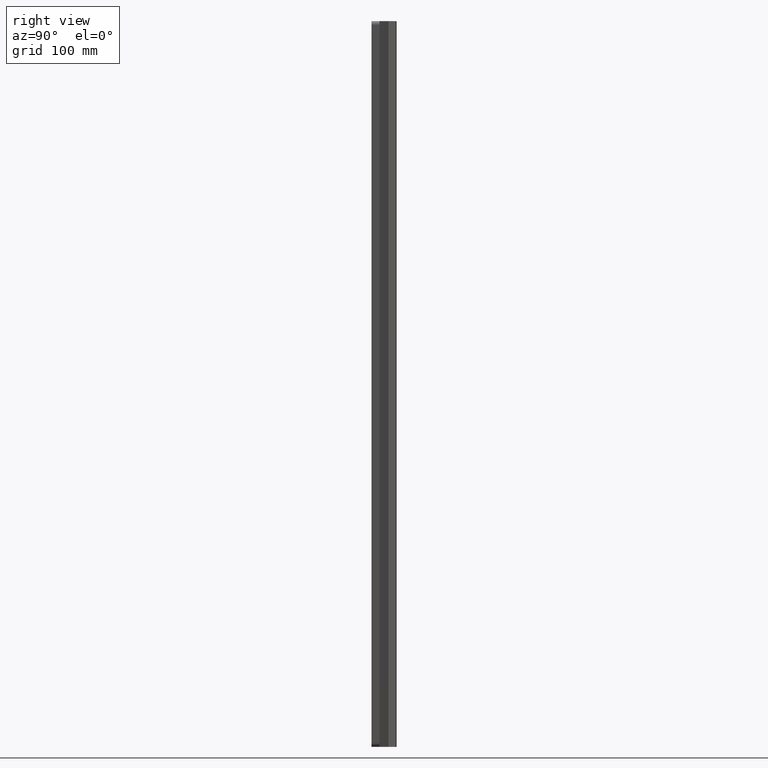
[diagram: clean part render]
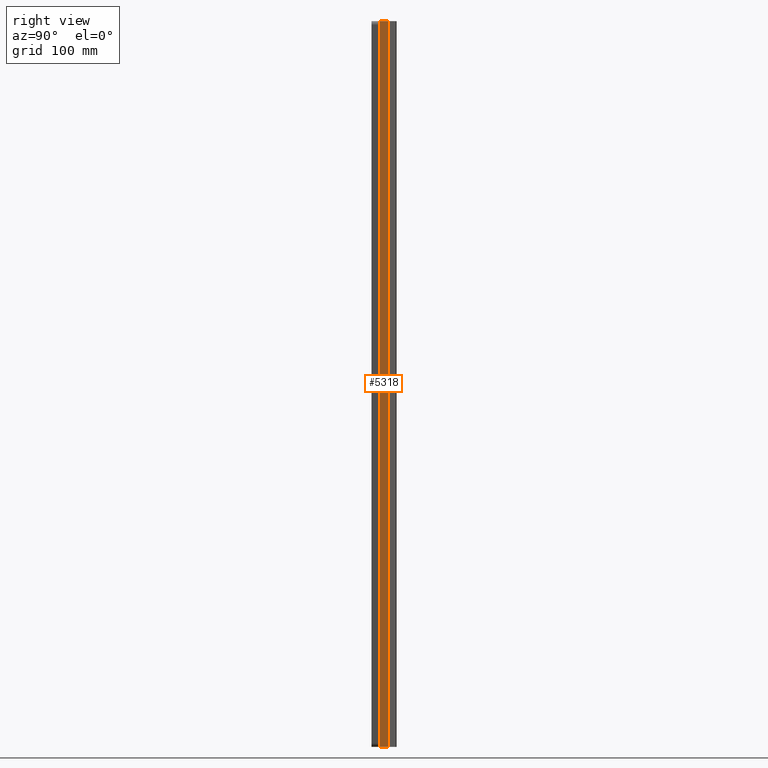
[diagram: same view with one face highlighted and labeled with its STEP entity id]
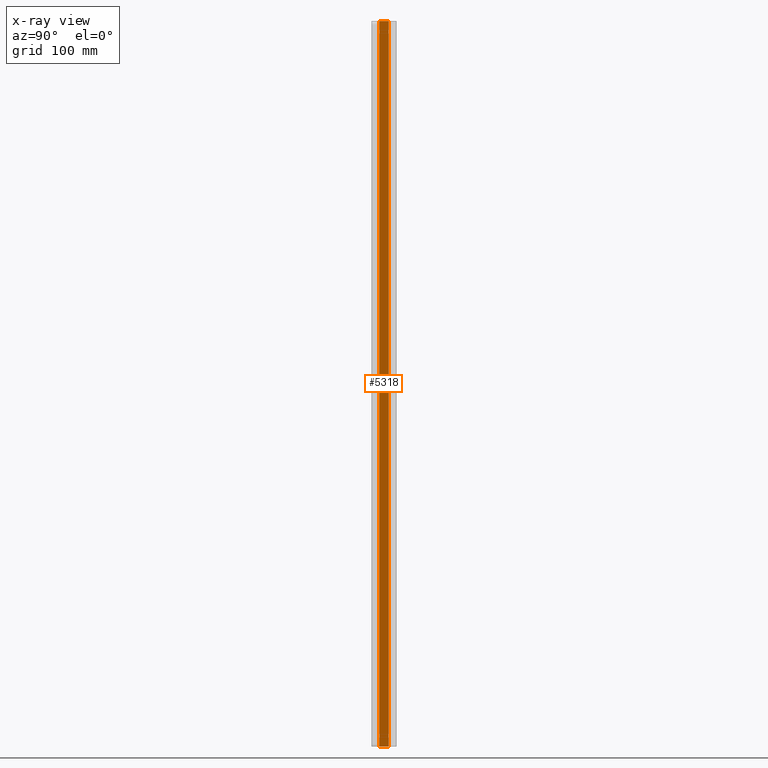
[diagram: x-ray of the same camera — body ghosted, the highlighted face saturated]
A machine part, right view. The second image highlights one B-rep face of the part: STEP entity #5318.
The next image is the same camera in x-ray: the body ghosted, the highlighted face saturated — about 0% of this face is hidden behind the body in this view.
In plain terms, the highlighted planar face has unit normal (-0.9806, -0.1961, 0).
Its self-contained STEP definition (entity closure, byte-faithful):
#23 = CARTESIAN_POINT ( 'NONE',  ( 45.00000000000001400, 2.056998972419209500E-015, -249.8284756297840900 ) ) ;
#104 = CARTESIAN_POINT ( 'NONE',  ( 44.99744111674247900, 0.01279441628770916500, 269.9999999999999400 ) ) ;
#118 = EDGE_CURVE ( 'NONE', #1297, #4018, #544, .T. ) ;
#123 = ORIENTED_EDGE ( 'NONE', *, *, #4160, .F. ) ;
#154 = ORIENTED_EDGE ( 'NONE', *, *, #1960, .F. ) ;
#173 = ORIENTED_EDGE ( 'NONE', *, *, #4915, .F. ) ;
#181 = CARTESIAN_POINT ( 'NONE',  ( 45.00000000000001400, 4.119968255444916800E-015, 500.0000000000000000 ) ) ;
#201 = ORIENTED_EDGE ( 'NONE', *, *, #4408, .F. ) ;
#205 = VERTEX_POINT ( 'NONE', #4863 ) ;
#228 = CARTESIAN_POINT ( 'NONE',  ( 42.50000000000000000, 12.49999999999955200, -500.0000000000000000 ) ) ;
#248 = VERTEX_POINT ( 'NONE', #1399 ) ;
#293 = DIRECTION ( 'NONE',  ( -0.0000000000000000000, -0.0000000000000000000, -1.000000000000000000 ) ) ;
#304 = CARTESIAN_POINT ( 'NONE',  ( 44.99744111674248600, 0.01279441628765361700, -140.0571853938673700 ) ) ;
#306 = CARTESIAN_POINT ( 'NONE',  ( 45.00000000000001400, 4.119968255444916800E-015, 500.0000000000000000 ) ) ;
#337 = VERTEX_POINT ( 'NONE', #516 ) ;
#346 = CARTESIAN_POINT ( 'NONE',  ( 44.99744111674248600, 0.01279441628765361700, -270.0571853938674300 ) ) ;
#413 = CARTESIAN_POINT ( 'NONE',  ( 44.99829414110111300, 0.008529294494493694000, -270.1143644251744700 ) ) ;
#424 = VERTEX_POINT ( 'NONE', #1697 ) ;
#434 =( BOUNDED_CURVE ( )  B_SPLINE_CURVE ( 3, ( #1039, #3493, #5530, #2569 ),
 .UNSPECIFIED., .F., .T. ) 
 B_SPLINE_CURVE_WITH_KNOTS ( ( 4, 4 ),
 ( 3.111757902484929300, 3.141592653589793100 ),
 .UNSPECIFIED. ) 
 CURVE ( )  GEOMETRIC_REPRESENTATION_ITEM ( )  RATIONAL_B_SPLINE_CURVE ( ( 1.000000000000000000, 0.9999258253443864500, 0.9999258253443864500, 1.000000000000000000 ) ) 
 REPRESENTATION_ITEM ( '' )  );
#482 = LINE ( 'NONE', #4513, #2020 ) ;
#503 = CARTESIAN_POINT ( 'NONE',  ( 44.99829414110111300, 0.008529294494495385400, -10.11436442517440100 ) ) ;
#516 = CARTESIAN_POINT ( 'NONE',  ( 44.99744111674247900, 0.01279441628770916500, -250.0000000000000600 ) ) ;
#522 = LINE ( 'NONE', #1688, #2067 ) ;
#544 =( BOUNDED_CURVE ( )  B_SPLINE_CURVE ( 3, ( #864, #4748, #5736, #4313 ),
 .UNSPECIFIED., .F., .F. ) 
 B_SPLINE_CURVE_WITH_KNOTS ( ( 4, 4 ),
 ( 3.141592653589793100, 3.171427404694613400 ),
 .UNSPECIFIED. ) 
 CURVE ( )  GEOMETRIC_REPRESENTATION_ITEM ( )  RATIONAL_B_SPLINE_CURVE ( ( 1.000000000000000000, 0.9999258253443867900, 0.9999258253443867900, 1.000000000000000000 ) ) 
 REPRESENTATION_ITEM ( '' )  );
#564 = ORIENTED_EDGE ( 'NONE', *, *, #3655, .F. ) ;
#621 =( BOUNDED_CURVE ( )  B_SPLINE_CURVE ( 3, ( #4146, #4650, #1694, #5143 ),
 .UNSPECIFIED., .F., .T. ) 
 B_SPLINE_CURVE_WITH_KNOTS ( ( 4, 4 ),
 ( 3.141592653589793100, 3.171427404694618300 ),
 .UNSPECIFIED. ) 
 CURVE ( )  GEOMETRIC_REPRESENTATION_ITEM ( )  RATIONAL_B_SPLINE_CURVE ( ( 1.000000000000000000, 0.9999258253443867900, 0.9999258253443867900, 1.000000000000000000 ) ) 
 REPRESENTATION_ITEM ( '' )  );
#650 = CARTESIAN_POINT ( 'NONE',  ( 44.99744111674247900, 0.01279441628770916500, 139.9999999999999700 ) ) ;
#667 = EDGE_CURVE ( 'NONE', #4145, #5021, #1893, .T. ) ;
#673 = CARTESIAN_POINT ( 'NONE',  ( 44.99744111674248600, 0.01279441628770916500, -270.0000000000000000 ) ) ;
#718 = EDGE_CURVE ( 'NONE', #248, #1830, #1361, .T. ) ;
#723 =( BOUNDED_CURVE ( )  B_SPLINE_CURVE ( 3, ( #5006, #3008, #4044, #4023 ),
 .UNSPECIFIED., .F., .F. ) 
 B_SPLINE_CURVE_WITH_KNOTS ( ( 4, 4 ),
 ( 3.141592653589793100, 3.171427404694617400 ),
 .UNSPECIFIED. ) 
 CURVE ( )  GEOMETRIC_REPRESENTATION_ITEM ( )  RATIONAL_B_SPLINE_CURVE ( ( 1.000000000000000000, 0.9999258253443867900, 0.9999258253443867900, 1.000000000000000000 ) ) 
 REPRESENTATION_ITEM ( '' )  );
#754 = CARTESIAN_POINT ( 'NONE',  ( 45.00000000000001400, 4.119968255444916800E-015, 500.0000000000000000 ) ) ;
#767 = CARTESIAN_POINT ( 'NONE',  ( 45.00000000000001400, 2.056998972419211500E-015, -400.1715243702162800 ) ) ;
#786 = VECTOR ( 'NONE', #911, 1000.000000000000000 ) ;
#822 = CARTESIAN_POINT ( 'NONE',  ( 45.00000000000001400, 4.119968255444916800E-015, 500.0000000000000000 ) ) ;
#846 = VERTEX_POINT ( 'NONE', #3916 ) ;
#864 = CARTESIAN_POINT ( 'NONE',  ( 44.99744111674247900, 0.01279441628770916500, 399.9999999999999400 ) ) ;
#878 = CARTESIAN_POINT ( 'NONE',  ( 45.00000000000001400, 2.056998972419209500E-015, -249.8284756297840900 ) ) ;
#907 = FACE_OUTER_BOUND ( 'NONE', #4568, .T. ) ;
#911 = DIRECTION ( 'NONE',  ( -0.0000000000000000000, -0.0000000000000000000, -1.000000000000000000 ) ) ;
#938 = EDGE_CURVE ( 'NONE', #4846, #5802, #4678, .T. ) ;
#968 = EDGE_CURVE ( 'NONE', #337, #4648, #2237, .T. ) ;
#970 = CARTESIAN_POINT ( 'NONE',  ( 44.99744111674248600, 0.01279441628765361700, -10.05718539386737800 ) ) ;
#1029 = VERTEX_POINT ( 'NONE', #3557 ) ;
#1039 = CARTESIAN_POINT ( 'NONE',  ( 45.00000000000001400, 2.056998972419211500E-015, 249.8284756297838100 ) ) ;
#1082 = VERTEX_POINT ( 'NONE', #5105 ) ;
#1153 = LINE ( 'NONE', #4349, #2543 ) ;
#1163 = ORIENTED_EDGE ( 'NONE', *, *, #2684, .T. ) ;
#1263 = CARTESIAN_POINT ( 'NONE',  ( 44.99744111674247900, 0.01279441628770916500, 399.9999999999999400 ) ) ;
#1278 = VERTEX_POINT ( 'NONE', #5670 ) ;
#1297 = VERTEX_POINT ( 'NONE', #1263 ) ;
#1300 = ORIENTED_EDGE ( 'NONE', *, *, #4315, .F. ) ;
#1318 = LINE ( 'NONE', #4754, #5719 ) ;
#1344 = EDGE_CURVE ( 'NONE', #5110, #5563, #6365, .T. ) ;
#1361 = LINE ( 'NONE', #1679, #4300 ) ;
#1399 = CARTESIAN_POINT ( 'NONE',  ( 45.00000000000001400, 4.119968255444916800E-015, -500.0000000000000000 ) ) ;
#1416 =( BOUNDED_CURVE ( )  B_SPLINE_CURVE ( 3, ( #2264, #6193, #304, #4727 ),
 .UNSPECIFIED., .F., .T. ) 
 B_SPLINE_CURVE_WITH_KNOTS ( ( 4, 4 ),
 ( 3.111757902484929300, 3.141592653589793100 ),
 .UNSPECIFIED. ) 
 CURVE ( )  GEOMETRIC_REPRESENTATION_ITEM ( )  RATIONAL_B_SPLINE_CURVE ( ( 1.000000000000000000, 0.9999258253443864500, 0.9999258253443864500, 1.000000000000000000 ) ) 
 REPRESENTATION_ITEM ( '' )  );
#1492 =( BOUNDED_CURVE ( )  B_SPLINE_CURVE ( 3, ( #3915, #3456, #3004, #5458 ),
 .UNSPECIFIED., .F., .F. ) 
 B_SPLINE_CURVE_WITH_KNOTS ( ( 4, 4 ),
 ( 3.141592653589793100, 3.171427404694618300 ),
 .UNSPECIFIED. ) 
 CURVE ( )  GEOMETRIC_REPRESENTATION_ITEM ( )  RATIONAL_B_SPLINE_CURVE ( ( 1.000000000000000000, 0.9999258253443867900, 0.9999258253443867900, 1.000000000000000000 ) ) 
 REPRESENTATION_ITEM ( '' )  );
#1510 = CARTESIAN_POINT ( 'NONE',  ( 45.00000000000001400, 4.119968255444916800E-015, 400.1715243702159300 ) ) ;
#1565 = LINE ( 'NONE', #3843, #786 ) ;
#1570 = EDGE_CURVE ( 'NONE', #3986, #1297, #4199, .T. ) ;
#1608 = VERTEX_POINT ( 'NONE', #5910 ) ;
#1624 = CARTESIAN_POINT ( 'NONE',  ( 45.00000000000001400, 2.056998972419211500E-015, -270.1715243702162200 ) ) ;
#1631 = EDGE_CURVE ( 'NONE', #4805, #5802, #1492, .T. ) ;
#1649 = EDGE_CURVE ( 'NONE', #5563, #337, #3891, .T. ) ;
#1679 = CARTESIAN_POINT ( 'NONE',  ( 45.00000000000001400, 4.119968255444916800E-015, -500.0000000000000000 ) ) ;
#1688 = CARTESIAN_POINT ( 'NONE',  ( 45.00000000000001400, 4.119968255444916800E-015, 500.0000000000000000 ) ) ;
#1694 = CARTESIAN_POINT ( 'NONE',  ( 44.99829414110112000, 0.008529294494465272300, -119.8856355748258300 ) ) ;
#1697 = CARTESIAN_POINT ( 'NONE',  ( 44.99744111674248600, 0.01279441628770916500, -10.00000000000000900 ) ) ;
#1744 = CARTESIAN_POINT ( 'NONE',  ( 44.99744111674249300, 0.01279441628765361900, 379.9428146061326900 ) ) ;
#1766 = CARTESIAN_POINT ( 'NONE',  ( 44.99744111674247200, 0.01279441628771971600, 380.0000000000000000 ) ) ;
#1829 = EDGE_CURVE ( 'NONE', #2405, #5714, #5204, .T. ) ;
#1830 = VERTEX_POINT ( 'NONE', #228 ) ;
#1863 = EDGE_CURVE ( 'NONE', #1082, #4225, #621, .T. ) ;
#1875 = CARTESIAN_POINT ( 'NONE',  ( 42.50000000000000000, 12.49999999999955200, 500.0000000000000000 ) ) ;
#1893 =( BOUNDED_CURVE ( )  B_SPLINE_CURVE ( 3, ( #2979, #4500, #4979, #2041 ),
 .UNSPECIFIED., .F., .T. ) 
 B_SPLINE_CURVE_WITH_KNOTS ( ( 4, 4 ),
 ( 3.111757902484924500, 3.141592653589793100 ),
 .UNSPECIFIED. ) 
 CURVE ( )  GEOMETRIC_REPRESENTATION_ITEM ( )  RATIONAL_B_SPLINE_CURVE ( ( 1.000000000000000000, 0.9999258253443864500, 0.9999258253443864500, 1.000000000000000000 ) ) 
 REPRESENTATION_ITEM ( '' )  );
#1898 = EDGE_CURVE ( 'NONE', #3863, #1830, #3441, .T. ) ;
#1917 = EDGE_CURVE ( 'NONE', #205, #4805, #5152, .T. ) ;
#1960 = EDGE_CURVE ( 'NONE', #3108, #846, #5207, .T. ) ;
#1967 = VERTEX_POINT ( 'NONE', #3372 ) ;
#1975 = EDGE_CURVE ( 'NONE', #5110, #846, #1565, .T. ) ;
#1985 = CARTESIAN_POINT ( 'NONE',  ( 44.99744111674274200, 0.01279441628638397800, 500.0000000000000000 ) ) ;
#1986 = CARTESIAN_POINT ( 'NONE',  ( 44.99829414110112000, 0.008529294494465272300, -249.8856355748258400 ) ) ;
#2020 = VECTOR ( 'NONE', #2545, 1000.000000000000000 ) ;
#2031 = DIRECTION ( 'NONE',  ( -0.0000000000000000000, -0.0000000000000000000, -1.000000000000000000 ) ) ;
#2041 = CARTESIAN_POINT ( 'NONE',  ( 44.99744111674248600, 0.01279441628770916500, -400.0000000000000000 ) ) ;
#2067 = VECTOR ( 'NONE', #5139, 1000.000000000000000 ) ;
#2105 = VECTOR ( 'NONE', #5117, 1000.000000000000000 ) ;
#2196 = CARTESIAN_POINT ( 'NONE',  ( 45.00000000000001400, 2.056998972419211500E-015, -10.17152437021621700 ) ) ;
#2237 =( BOUNDED_CURVE ( )  B_SPLINE_CURVE ( 3, ( #5954, #4948, #1986, #23 ),
 .UNSPECIFIED., .F., .F. ) 
 B_SPLINE_CURVE_WITH_KNOTS ( ( 4, 4 ),
 ( 3.141592653589793100, 3.171427404694618300 ),
 .UNSPECIFIED. ) 
 CURVE ( )  GEOMETRIC_REPRESENTATION_ITEM ( )  RATIONAL_B_SPLINE_CURVE ( ( 1.000000000000000000, 0.9999258253443867900, 0.9999258253443867900, 1.000000000000000000 ) ) 
 REPRESENTATION_ITEM ( '' )  );
#2261 = LINE ( 'NONE', #6348, #3788 ) ;
#2264 = CARTESIAN_POINT ( 'NONE',  ( 45.00000000000001400, 2.056998972419211500E-015, -140.1715243702162200 ) ) ;
#2269 = EDGE_CURVE ( 'NONE', #1029, #4648, #3880, .T. ) ;
#2293 = CARTESIAN_POINT ( 'NONE',  ( 45.00000000000001400, 2.056998972419211500E-015, -270.1715243702162200 ) ) ;
#2317 = DIRECTION ( 'NONE',  ( 3.469446951953620600E-016, -1.734723475976741600E-015, 1.000000000000000000 ) ) ;
#2348 = CARTESIAN_POINT ( 'NONE',  ( 44.99744111674248600, 0.01279441628770916500, -400.0000000000000000 ) ) ;
#2375 = DIRECTION ( 'NONE',  ( -0.0000000000000000000, -0.0000000000000000000, -1.000000000000000000 ) ) ;
#2401 = VECTOR ( 'NONE', #5033, 1000.000000000000000 ) ;
#2403 = ORIENTED_EDGE ( 'NONE', *, *, #2951, .F. ) ;
#2405 = VERTEX_POINT ( 'NONE', #5758 ) ;
#2482 = CARTESIAN_POINT ( 'NONE',  ( 44.99744111674247200, 0.01279441628771971600, 380.0000000000000000 ) ) ;
#2527 = VERTEX_POINT ( 'NONE', #4632 ) ;
#2535 = CARTESIAN_POINT ( 'NONE',  ( 44.99744111674247900, 0.01279441628770916500, -380.0000000000000600 ) ) ;
#2543 = VECTOR ( 'NONE', #4832, 1000.000000000000100 ) ;
#2545 = DIRECTION ( 'NONE',  ( 3.469446951953620600E-016, -1.734723475976741600E-015, 1.000000000000000000 ) ) ;
#2552 = ORIENTED_EDGE ( 'NONE', *, *, #667, .F. ) ;
#2569 = CARTESIAN_POINT ( 'NONE',  ( 44.99744111674248600, 0.01279441628770916500, 250.0000000000000000 ) ) ;
#2588 = ORIENTED_EDGE ( 'NONE', *, *, #3883, .T. ) ;
#2684 = EDGE_CURVE ( 'NONE', #5974, #4225, #3798, .T. ) ;
#2707 =( BOUNDED_CURVE ( )  B_SPLINE_CURVE ( 3, ( #2929, #503, #970, #3414 ),
 .UNSPECIFIED., .F., .F. ) 
 B_SPLINE_CURVE_WITH_KNOTS ( ( 4, 4 ),
 ( 3.111757902484927600, 3.141592653589793100 ),
 .UNSPECIFIED. ) 
 CURVE ( )  GEOMETRIC_REPRESENTATION_ITEM ( )  RATIONAL_B_SPLINE_CURVE ( ( 1.000000000000000000, 0.9999258253443864500, 0.9999258253443864500, 1.000000000000000000 ) ) 
 REPRESENTATION_ITEM ( '' )  );
#2778 = AXIS2_PLACEMENT_3D ( 'NONE', #306, #3750, #4244 ) ;
#2786 = CARTESIAN_POINT ( 'NONE',  ( 44.99829414110112000, 0.008529294494465948900, -379.8856355748258700 ) ) ;
#2815 = ORIENTED_EDGE ( 'NONE', *, *, #4075, .F. ) ;
#2860 = ORIENTED_EDGE ( 'NONE', *, *, #1570, .F. ) ;
#2876 = CARTESIAN_POINT ( 'NONE',  ( 44.99744111674248600, 0.01279441628770916500, -270.0000000000000000 ) ) ;
#2888 = VECTOR ( 'NONE', #2984, 1000.000000000000000 ) ;
#2910 = ORIENTED_EDGE ( 'NONE', *, *, #1344, .F. ) ;
#2929 = CARTESIAN_POINT ( 'NONE',  ( 45.00000000000001400, 2.056998972419211500E-015, -10.17152437021621700 ) ) ;
#2934 = VECTOR ( 'NONE', #5338, 1000.000000000000000 ) ;
#2951 = EDGE_CURVE ( 'NONE', #5021, #3108, #2261, .T. ) ;
#2979 = CARTESIAN_POINT ( 'NONE',  ( 45.00000000000001400, 2.056998972419211500E-015, -400.1715243702162800 ) ) ;
#2984 = DIRECTION ( 'NONE',  ( 3.469446951953620600E-016, -1.734723475976741600E-015, 1.000000000000000000 ) ) ;
#3004 = CARTESIAN_POINT ( 'NONE',  ( 44.99829414110112000, 0.008529294494465272300, 140.1143644251741900 ) ) ;
#3008 = CARTESIAN_POINT ( 'NONE',  ( 44.99744111674249300, 0.01279441628761205700, 10.05718539386724200 ) ) ;
#3064 = VERTEX_POINT ( 'NONE', #104 ) ;
#3108 = VERTEX_POINT ( 'NONE', #2535 ) ;
#3251 = PLANE ( 'NONE',  #2778 ) ;
#3268 = VECTOR ( 'NONE', #293, 1000.000000000000000 ) ;
#3294 = VECTOR ( 'NONE', #2317, 1000.000000000000000 ) ;
#3329 = CARTESIAN_POINT ( 'NONE',  ( 44.99744111674249300, 0.01279441628761205700, -379.9428146061328600 ) ) ;
#3369 = CARTESIAN_POINT ( 'NONE',  ( 44.99744111674248600, 0.01279441628770916500, 120.0000000000000000 ) ) ;
#3372 = CARTESIAN_POINT ( 'NONE',  ( 44.99744111674248600, 0.01279441628770916500, 250.0000000000000000 ) ) ;
#3414 = CARTESIAN_POINT ( 'NONE',  ( 44.99744111674248600, 0.01279441628770916500, -10.00000000000000900 ) ) ;
#3435 = ORIENTED_EDGE ( 'NONE', *, *, #1829, .T. ) ;
#3441 = LINE ( 'NONE', #1875, #3268 ) ;
#3456 = CARTESIAN_POINT ( 'NONE',  ( 44.99744111674249300, 0.01279441628761205700, 140.0571853938672900 ) ) ;
#3473 = DIRECTION ( 'NONE',  ( 3.469446951953620600E-016, -1.734723475976741600E-015, 1.000000000000000000 ) ) ;
#3475 = EDGE_CURVE ( 'NONE', #3064, #1608, #5329, .T. ) ;
#3482 = LINE ( 'NONE', #822, #6340 ) ;
#3484 = ORIENTED_EDGE ( 'NONE', *, *, #5631, .T. ) ;
#3493 = CARTESIAN_POINT ( 'NONE',  ( 44.99829414110111300, 0.008529294494494370600, 249.8856355748256100 ) ) ;
#3557 = CARTESIAN_POINT ( 'NONE',  ( 45.00000000000001400, 2.056998972419211500E-015, -140.1715243702162200 ) ) ;
#3599 = EDGE_CURVE ( 'NONE', #1967, #3064, #482, .T. ) ;
#3650 = ORIENTED_EDGE ( 'NONE', *, *, #3901, .F. ) ;
#3655 = EDGE_CURVE ( 'NONE', #4846, #1967, #434, .T. ) ;
#3674 = VECTOR ( 'NONE', #2031, 1000.000000000000000 ) ;
#3694 = ORIENTED_EDGE ( 'NONE', *, *, #1975, .T. ) ;
#3750 = DIRECTION ( 'NONE',  ( -0.9805806756909186700, -0.1961161351381915100, 0.0000000000000000000 ) ) ;
#3788 = VECTOR ( 'NONE', #6324, 1000.000000000000000 ) ;
#3798 = LINE ( 'NONE', #4312, #6049 ) ;
#3816 = EDGE_CURVE ( 'NONE', #2527, #1082, #1318, .T. ) ;
#3828 = DIRECTION ( 'NONE',  ( -0.0000000000000000000, -0.0000000000000000000, -1.000000000000000000 ) ) ;
#3836 = CARTESIAN_POINT ( 'NONE',  ( 42.50000000000000000, 12.49999999999955200, 500.0000000000000000 ) ) ;
#3843 = CARTESIAN_POINT ( 'NONE',  ( 45.00000000000001400, 4.119968255444916800E-015, 500.0000000000000000 ) ) ;
#3860 =( BOUNDED_CURVE ( )  B_SPLINE_CURVE ( 3, ( #5854, #4876, #4852, #3369 ),
 .UNSPECIFIED., .F., .F. ) 
 B_SPLINE_CURVE_WITH_KNOTS ( ( 4, 4 ),
 ( 3.111757902484926700, 3.141592653589793100 ),
 .UNSPECIFIED. ) 
 CURVE ( )  GEOMETRIC_REPRESENTATION_ITEM ( )  RATIONAL_B_SPLINE_CURVE ( ( 1.000000000000000000, 0.9999258253443864500, 0.9999258253443864500, 1.000000000000000000 ) ) 
 REPRESENTATION_ITEM ( '' )  );
#3863 = VERTEX_POINT ( 'NONE', #3836 ) ;
#3880 = LINE ( 'NONE', #181, #2105 ) ;
#3883 = EDGE_CURVE ( 'NONE', #1278, #1608, #4629, .T. ) ;
#3891 = LINE ( 'NONE', #1985, #6132 ) ;
#3901 = EDGE_CURVE ( 'NONE', #5382, #3863, #1153, .T. ) ;
#3915 = CARTESIAN_POINT ( 'NONE',  ( 44.99744111674247900, 0.01279441628770916500, 139.9999999999999700 ) ) ;
#3916 = CARTESIAN_POINT ( 'NONE',  ( 45.00000000000001400, 2.056998972419209500E-015, -379.8284756297841200 ) ) ;
#3945 = EDGE_CURVE ( 'NONE', #4145, #248, #3482, .T. ) ;
#3986 = VERTEX_POINT ( 'NONE', #2482 ) ;
#4015 = ORIENTED_EDGE ( 'NONE', *, *, #3599, .F. ) ;
#4018 = VERTEX_POINT ( 'NONE', #1510 ) ;
#4023 = CARTESIAN_POINT ( 'NONE',  ( 45.00000000000001400, 2.056998972419209500E-015, 10.17152437021592300 ) ) ;
#4044 = CARTESIAN_POINT ( 'NONE',  ( 44.99829414110112000, 0.008529294494464765800, 10.11436442517418800 ) ) ;
#4075 = EDGE_CURVE ( 'NONE', #424, #5247, #4883, .T. ) ;
#4145 = VERTEX_POINT ( 'NONE', #767 ) ;
#4146 = CARTESIAN_POINT ( 'NONE',  ( 44.99744111674247900, 0.01279441628770916500, -120.0000000000000600 ) ) ;
#4160 = EDGE_CURVE ( 'NONE', #1029, #2527, #1416, .T. ) ;
#4199 = LINE ( 'NONE', #5413, #2888 ) ;
#4207 = DIRECTION ( 'NONE',  ( -0.0000000000000000000, -0.0000000000000000000, -1.000000000000000000 ) ) ;
#4225 = VERTEX_POINT ( 'NONE', #6166 ) ;
#4226 = DIRECTION ( 'NONE',  ( 3.469446951953620600E-016, -1.734723475976741600E-015, 1.000000000000000000 ) ) ;
#4233 = CARTESIAN_POINT ( 'NONE',  ( 44.99744111674247900, 0.01279441628770916500, 269.9999999999999400 ) ) ;
#4244 = DIRECTION ( 'NONE',  ( 0.1961161351381914800, -0.9805806756909185600, 0.0000000000000000000 ) ) ;
#4270 = CARTESIAN_POINT ( 'NONE',  ( 45.00000000000001400, 4.119968255444916800E-015, 379.8284756297838400 ) ) ;
#4300 = VECTOR ( 'NONE', #4723, 1000.000000000000100 ) ;
#4312 = CARTESIAN_POINT ( 'NONE',  ( 45.00000000000001400, 4.119968255444916800E-015, 500.0000000000000000 ) ) ;
#4313 = CARTESIAN_POINT ( 'NONE',  ( 45.00000000000001400, 4.119968255444916800E-015, 400.1715243702159300 ) ) ;
#4315 = EDGE_CURVE ( 'NONE', #5974, #424, #2707, .T. ) ;
#4330 = CARTESIAN_POINT ( 'NONE',  ( 45.00000000000001400, 2.056998972419209500E-015, 140.1715243702159300 ) ) ;
#4349 = CARTESIAN_POINT ( 'NONE',  ( 45.00000000000001400, 4.119968255444916800E-015, 500.0000000000000000 ) ) ;
#4408 = EDGE_CURVE ( 'NONE', #5247, #5714, #723, .T. ) ;
#4500 = CARTESIAN_POINT ( 'NONE',  ( 44.99829414110111300, 0.008529294494493694000, -400.1143644251744700 ) ) ;
#4513 = CARTESIAN_POINT ( 'NONE',  ( 44.99744111674255700, 0.01279441628728603500, 500.0000000000000000 ) ) ;
#4552 = ORIENTED_EDGE ( 'NONE', *, *, #3475, .F. ) ;
#4568 = EDGE_LOOP ( 'NONE', ( #154, #2403, #2552, #4741, #5694, #5178, #3650, #3484, #6253, #2860, #173, #2588, #4552, #4015, #564, #6182, #5742, #5859, #4813, #3435, #201, #2815, #1300, #1163, #6187, #4951, #123, #4892, #4745, #6043, #2910, #3694 ) ) ;
#4575 = CARTESIAN_POINT ( 'NONE',  ( 44.99744111674264200, 0.01279441628683500800, 500.0000000000000000 ) ) ;
#4629 = LINE ( 'NONE', #6286, #2934 ) ;
#4632 = CARTESIAN_POINT ( 'NONE',  ( 44.99744111674248600, 0.01279441628770916500, -140.0000000000000000 ) ) ;
#4648 = VERTEX_POINT ( 'NONE', #878 ) ;
#4650 = CARTESIAN_POINT ( 'NONE',  ( 44.99744111674249300, 0.01279441628761205700, -119.9428146061327700 ) ) ;
#4660 = CARTESIAN_POINT ( 'NONE',  ( 45.00000000000001400, 2.056998972419211500E-015, 249.8284756297838100 ) ) ;
#4678 = LINE ( 'NONE', #5993, #3674 ) ;
#4723 = DIRECTION ( 'NONE',  ( -0.1961161351381914800, 0.9805806756909185600, 0.0000000000000000000 ) ) ;
#4727 = CARTESIAN_POINT ( 'NONE',  ( 44.99744111674248600, 0.01279441628770916500, -140.0000000000000000 ) ) ;
#4741 = ORIENTED_EDGE ( 'NONE', *, *, #3945, .T. ) ;
#4745 = ORIENTED_EDGE ( 'NONE', *, *, #968, .F. ) ;
#4748 = CARTESIAN_POINT ( 'NONE',  ( 44.99744111674249300, 0.01279441628761205700, 400.0571853938673100 ) ) ;
#4754 = CARTESIAN_POINT ( 'NONE',  ( 44.99744111674269200, 0.01279441628660949300, 500.0000000000000000 ) ) ;
#4805 = VERTEX_POINT ( 'NONE', #650 ) ;
#4813 = ORIENTED_EDGE ( 'NONE', *, *, #5798, .F. ) ;
#4832 = DIRECTION ( 'NONE',  ( -0.1961161351381914800, 0.9805806756909185600, 0.0000000000000000000 ) ) ;
#4846 = VERTEX_POINT ( 'NONE', #4660 ) ;
#4852 = CARTESIAN_POINT ( 'NONE',  ( 44.99744111674248600, 0.01279441628765361700, 119.9428146061326300 ) ) ;
#4863 = CARTESIAN_POINT ( 'NONE',  ( 44.99744111674248600, 0.01279441628770916500, 120.0000000000000000 ) ) ;
#4876 = CARTESIAN_POINT ( 'NONE',  ( 44.99829414110111300, 0.008529294494495893600, 119.8856355748256000 ) ) ;
#4883 = LINE ( 'NONE', #4575, #2401 ) ;
#4892 = ORIENTED_EDGE ( 'NONE', *, *, #2269, .T. ) ;
#4915 = EDGE_CURVE ( 'NONE', #1278, #3986, #5018, .T. ) ;
#4948 = CARTESIAN_POINT ( 'NONE',  ( 44.99744111674249300, 0.01279441628761205700, -249.9428146061328000 ) ) ;
#4951 = ORIENTED_EDGE ( 'NONE', *, *, #3816, .F. ) ;
#4979 = CARTESIAN_POINT ( 'NONE',  ( 44.99744111674248600, 0.01279441628765361700, -400.0571853938673700 ) ) ;
#5006 = CARTESIAN_POINT ( 'NONE',  ( 44.99744111674247900, 0.01279441628770916500, 9.999999999999953800 ) ) ;
#5018 =( BOUNDED_CURVE ( )  B_SPLINE_CURVE ( 3, ( #4270, #5262, #1744, #1766 ),
 .UNSPECIFIED., .F., .F. ) 
 B_SPLINE_CURVE_WITH_KNOTS ( ( 4, 4 ),
 ( 3.111757902484934200, 3.141592653589793100 ),
 .UNSPECIFIED. ) 
 CURVE ( )  GEOMETRIC_REPRESENTATION_ITEM ( )  RATIONAL_B_SPLINE_CURVE ( ( 1.000000000000000000, 0.9999258253443865700, 0.9999258253443865700, 1.000000000000000000 ) ) 
 REPRESENTATION_ITEM ( '' )  );
#5021 = VERTEX_POINT ( 'NONE', #2348 ) ;
#5033 = DIRECTION ( 'NONE',  ( 3.469446951953620600E-016, -1.734723475976741600E-015, 1.000000000000000000 ) ) ;
#5105 = CARTESIAN_POINT ( 'NONE',  ( 44.99744111674247900, 0.01279441628770916500, -120.0000000000000600 ) ) ;
#5110 = VERTEX_POINT ( 'NONE', #1624 ) ;
#5117 = DIRECTION ( 'NONE',  ( -0.0000000000000000000, -0.0000000000000000000, -1.000000000000000000 ) ) ;
#5139 = DIRECTION ( 'NONE',  ( -0.0000000000000000000, -0.0000000000000000000, -1.000000000000000000 ) ) ;
#5143 = CARTESIAN_POINT ( 'NONE',  ( 45.00000000000001400, 2.056998972419209500E-015, -119.8284756297840800 ) ) ;
#5152 = LINE ( 'NONE', #5725, #3294 ) ;
#5178 = ORIENTED_EDGE ( 'NONE', *, *, #1898, .F. ) ;
#5204 = LINE ( 'NONE', #754, #6373 ) ;
#5207 =( BOUNDED_CURVE ( )  B_SPLINE_CURVE ( 3, ( #5749, #3329, #2786, #5817 ),
 .UNSPECIFIED., .F., .F. ) 
 B_SPLINE_CURVE_WITH_KNOTS ( ( 4, 4 ),
 ( 3.141592653589793100, 3.171427404694613400 ),
 .UNSPECIFIED. ) 
 CURVE ( )  GEOMETRIC_REPRESENTATION_ITEM ( )  RATIONAL_B_SPLINE_CURVE ( ( 1.000000000000000000, 0.9999258253443867900, 0.9999258253443867900, 1.000000000000000000 ) ) 
 REPRESENTATION_ITEM ( '' )  );
#5247 = VERTEX_POINT ( 'NONE', #6167 ) ;
#5262 = CARTESIAN_POINT ( 'NONE',  ( 44.99829414110112000, 0.008529294494498516600, 379.8856355748257000 ) ) ;
#5318 = ADVANCED_FACE ( 'NONE', ( #907 ), #3251, .F. ) ;
#5329 =( BOUNDED_CURVE ( )  B_SPLINE_CURVE ( 3, ( #4233, #5383, #6379, #5405 ),
 .UNSPECIFIED., .F., .F. ) 
 B_SPLINE_CURVE_WITH_KNOTS ( ( 4, 4 ),
 ( 3.141592653589793100, 3.171427404694613400 ),
 .UNSPECIFIED. ) 
 CURVE ( )  GEOMETRIC_REPRESENTATION_ITEM ( )  RATIONAL_B_SPLINE_CURVE ( ( 1.000000000000000000, 0.9999258253443867900, 0.9999258253443867900, 1.000000000000000000 ) ) 
 REPRESENTATION_ITEM ( '' )  );
#5338 = DIRECTION ( 'NONE',  ( -0.0000000000000000000, -0.0000000000000000000, -1.000000000000000000 ) ) ;
#5382 = VERTEX_POINT ( 'NONE', #5781 ) ;
#5383 = CARTESIAN_POINT ( 'NONE',  ( 44.99744111674249300, 0.01279441628761205700, 270.0571853938672600 ) ) ;
#5405 = CARTESIAN_POINT ( 'NONE',  ( 45.00000000000001400, 2.056998972419209500E-015, 270.1715243702159300 ) ) ;
#5413 = CARTESIAN_POINT ( 'NONE',  ( 44.99744111674250700, 0.01279441628751154900, 500.0000000000000000 ) ) ;
#5458 = CARTESIAN_POINT ( 'NONE',  ( 45.00000000000001400, 2.056998972419209500E-015, 140.1715243702159300 ) ) ;
#5530 = CARTESIAN_POINT ( 'NONE',  ( 44.99744111674248600, 0.01279441628765361700, 249.9428146061326300 ) ) ;
#5563 = VERTEX_POINT ( 'NONE', #673 ) ;
#5631 = EDGE_CURVE ( 'NONE', #5382, #4018, #522, .T. ) ;
#5648 = CARTESIAN_POINT ( 'NONE',  ( 45.00000000000001400, 2.056998972419209500E-015, 10.17152437021592300 ) ) ;
#5670 = CARTESIAN_POINT ( 'NONE',  ( 45.00000000000001400, 4.119968255444916800E-015, 379.8284756297838400 ) ) ;
#5694 = ORIENTED_EDGE ( 'NONE', *, *, #718, .T. ) ;
#5714 = VERTEX_POINT ( 'NONE', #5648 ) ;
#5719 = VECTOR ( 'NONE', #4226, 1000.000000000000000 ) ;
#5725 = CARTESIAN_POINT ( 'NONE',  ( 44.99744111674260000, 0.01279441628706052100, 500.0000000000000000 ) ) ;
#5736 = CARTESIAN_POINT ( 'NONE',  ( 44.99829414110112000, 0.008529294494465948900, 400.1143644251742400 ) ) ;
#5742 = ORIENTED_EDGE ( 'NONE', *, *, #1631, .F. ) ;
#5749 = CARTESIAN_POINT ( 'NONE',  ( 44.99744111674247900, 0.01279441628770916500, -380.0000000000000600 ) ) ;
#5758 = CARTESIAN_POINT ( 'NONE',  ( 45.00000000000001400, 2.056998972419211500E-015, 119.8284756297837800 ) ) ;
#5781 = CARTESIAN_POINT ( 'NONE',  ( 45.00000000000001400, 4.119968255444916800E-015, 500.0000000000000000 ) ) ;
#5798 = EDGE_CURVE ( 'NONE', #2405, #205, #3860, .T. ) ;
#5802 = VERTEX_POINT ( 'NONE', #4330 ) ;
#5817 = CARTESIAN_POINT ( 'NONE',  ( 45.00000000000001400, 2.056998972419209500E-015, -379.8284756297841200 ) ) ;
#5854 = CARTESIAN_POINT ( 'NONE',  ( 45.00000000000001400, 2.056998972419211500E-015, 119.8284756297837800 ) ) ;
#5859 = ORIENTED_EDGE ( 'NONE', *, *, #1917, .F. ) ;
#5910 = CARTESIAN_POINT ( 'NONE',  ( 45.00000000000001400, 2.056998972419209500E-015, 270.1715243702159300 ) ) ;
#5954 = CARTESIAN_POINT ( 'NONE',  ( 44.99744111674247900, 0.01279441628770916500, -250.0000000000000600 ) ) ;
#5974 = VERTEX_POINT ( 'NONE', #2196 ) ;
#5993 = CARTESIAN_POINT ( 'NONE',  ( 45.00000000000001400, 4.119968255444916800E-015, 500.0000000000000000 ) ) ;
#6043 = ORIENTED_EDGE ( 'NONE', *, *, #1649, .F. ) ;
#6049 = VECTOR ( 'NONE', #3828, 1000.000000000000000 ) ;
#6132 = VECTOR ( 'NONE', #3473, 1000.000000000000000 ) ;
#6166 = CARTESIAN_POINT ( 'NONE',  ( 45.00000000000001400, 2.056998972419209500E-015, -119.8284756297840800 ) ) ;
#6167 = CARTESIAN_POINT ( 'NONE',  ( 44.99744111674247900, 0.01279441628770916500, 9.999999999999953800 ) ) ;
#6182 = ORIENTED_EDGE ( 'NONE', *, *, #938, .T. ) ;
#6187 = ORIENTED_EDGE ( 'NONE', *, *, #1863, .F. ) ;
#6193 = CARTESIAN_POINT ( 'NONE',  ( 44.99829414110111300, 0.008529294494494370600, -140.1143644251743900 ) ) ;
#6253 = ORIENTED_EDGE ( 'NONE', *, *, #118, .F. ) ;
#6286 = CARTESIAN_POINT ( 'NONE',  ( 45.00000000000001400, 4.119968255444916800E-015, 500.0000000000000000 ) ) ;
#6324 = DIRECTION ( 'NONE',  ( 3.469446951953620600E-016, -1.734723475976741600E-015, 1.000000000000000000 ) ) ;
#6340 = VECTOR ( 'NONE', #2375, 1000.000000000000000 ) ;
#6348 = CARTESIAN_POINT ( 'NONE',  ( 44.99744111674278500, 0.01279441628615846600, 500.0000000000000000 ) ) ;
#6365 =( BOUNDED_CURVE ( )  B_SPLINE_CURVE ( 3, ( #2293, #413, #346, #2876 ),
 .UNSPECIFIED., .F., .T. ) 
 B_SPLINE_CURVE_WITH_KNOTS ( ( 4, 4 ),
 ( 3.111757902484924500, 3.141592653589793100 ),
 .UNSPECIFIED. ) 
 CURVE ( )  GEOMETRIC_REPRESENTATION_ITEM ( )  RATIONAL_B_SPLINE_CURVE ( ( 1.000000000000000000, 0.9999258253443864500, 0.9999258253443864500, 1.000000000000000000 ) ) 
 REPRESENTATION_ITEM ( '' )  );
#6373 = VECTOR ( 'NONE', #4207, 1000.000000000000000 ) ;
#6379 = CARTESIAN_POINT ( 'NONE',  ( 44.99829414110112000, 0.008529294494465948900, 270.1143644251742400 ) ) ;